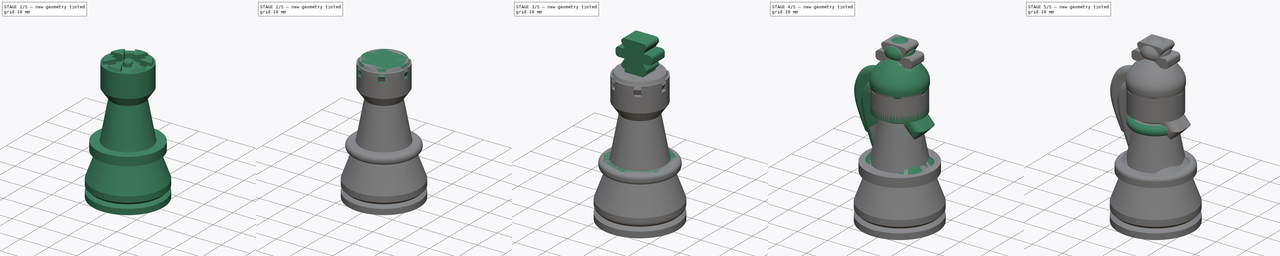
[diagram: build sequence overview — one tinted view per stage of 5, left to right]
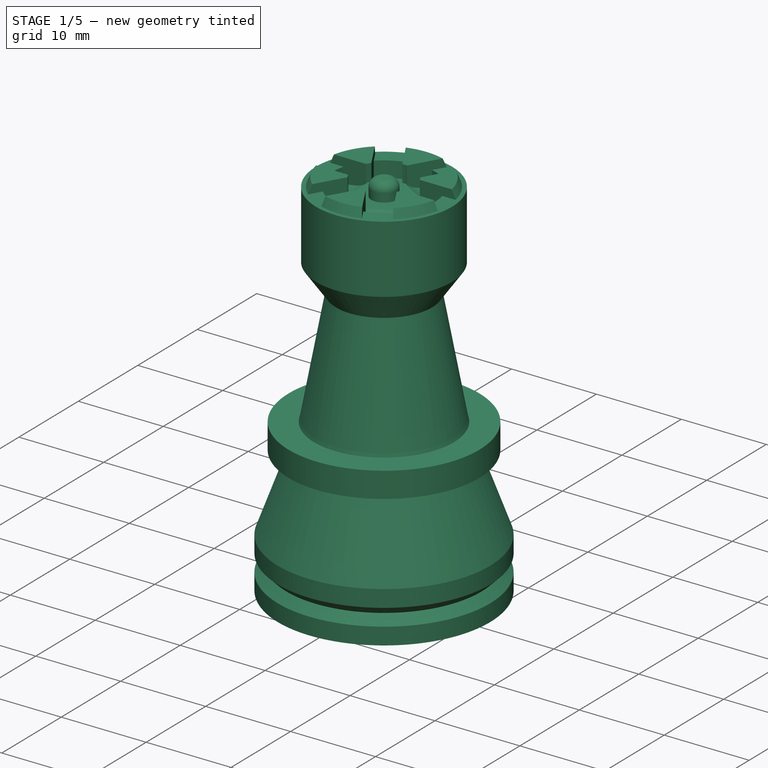
[diagram: stage 1 of 5 — iso view after this stage's code; geometry added in this stage tinted green]
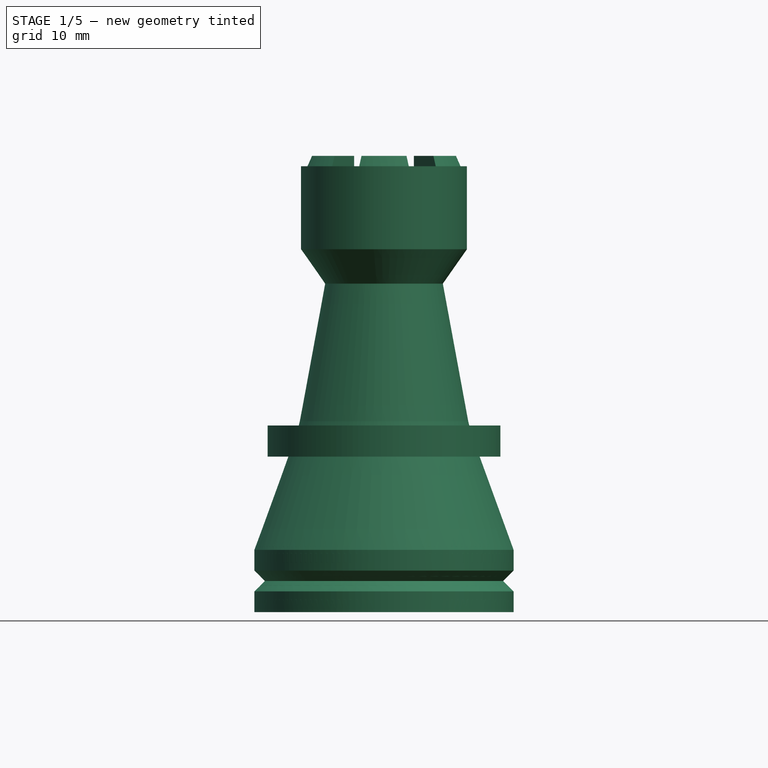
[diagram: stage 1 of 5 — front view after this stage's code; geometry added in this stage tinted green]
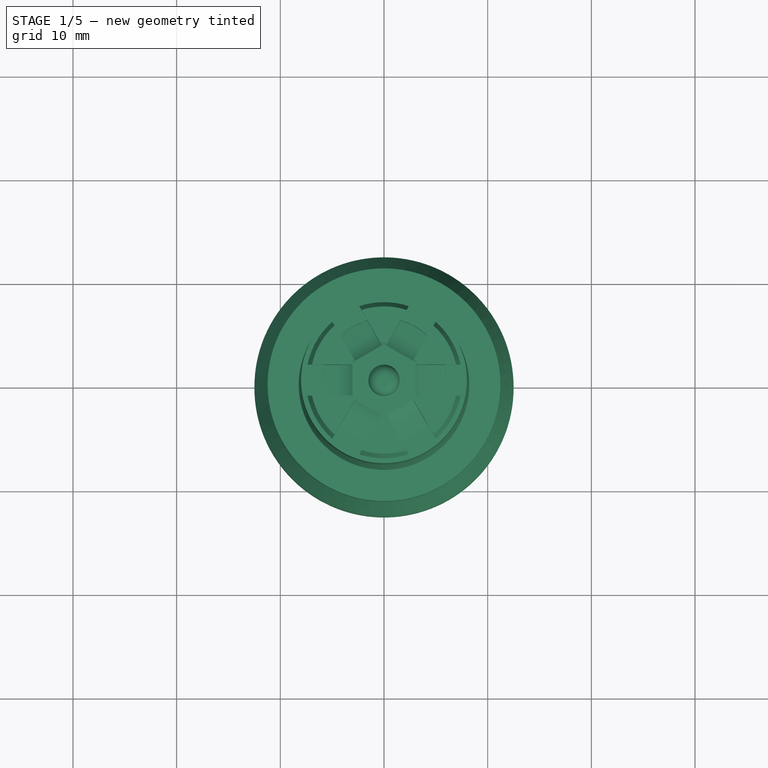
[diagram: stage 1 of 5 — top view after this stage's code; geometry added in this stage tinted green]
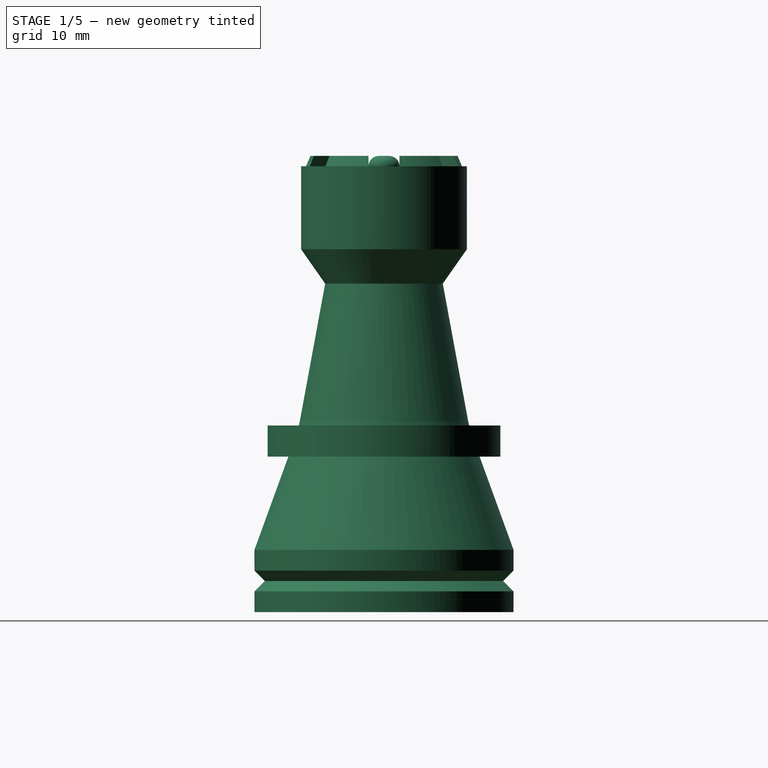
[diagram: stage 1 of 5 — right view after this stage's code; geometry added in this stage tinted green]
FCSTD DOCUMENT  (FreeCAD 1.0R39319 (Git))
Label: ChessPieces
License: All rights reserved
LicenseURL: https://en.wikipedia.org/wiki/All_rights_reserved
objects: PartDesign::Fillet×16, Sketcher::SketchObject×13, PartDesign::Revolution×6, PartDesign::Body×6, PartDesign::Pocket×4, PartDesign::Pad×3, PartDesign::Chamfer×2, PartDesign::PolarPattern×2, PartDesign::Mirrored×1, App::LinkGroup×1
note: 131 computed .brp shape members not serialized (recipe doc carries the construction recipe); baked Part::Feature solids carry a one-line shape summary decoded from their .brp

FEATURE [PartDesign::Body] Body  label="Pawn"
  AllowCompound = false
  Group = -> [Sketch,Revolution,Fillet,Fillet001]
  Origin = -> Origin
  Tip = -> Fillet001
FEATURE [Sketcher::SketchObject] Sketch001
  ArcFitTolerance = 1e-06
  AttachmentSupport = -> [XZ_Plane001]
  FullyConstrained = false
  MakeInternals = false
  MapMode = 5
  Placement = pos=(0,0,0) rot=(1,0,0;1.5708rad)
  sketch-geometry (18):
    g0: LineSegment StartX=0 StartY=5 StartZ=0 EndX=5 EndY=5 EndZ=0
    g1: LineSegment StartX=5 StartY=5 StartZ=0 EndX=5 EndY=0 EndZ=0
    g2: LineSegment StartX=5 StartY=0 StartZ=0 EndX=12.5 EndY=0 EndZ=0
    g3: LineSegment StartX=12.5 StartY=0 StartZ=0 EndX=12.5 EndY=2 EndZ=0
    g4: LineSegment StartX=0 StartY=40 StartZ=0 EndX=0 EndY=5 EndZ=0
    g5: LineSegment StartX=12.5 StartY=2 StartZ=0 EndX=11.5 EndY=3 EndZ=0
    g6: LineSegment StartX=11.5 StartY=3 StartZ=0 EndX=12.5 EndY=4 EndZ=0
    g7: LineSegment StartX=12.5 StartY=4 StartZ=0 EndX=12.5 EndY=6 EndZ=0
    g8: LineSegment StartX=12.5 StartY=6 StartZ=0 EndX=9.22427 EndY=15 EndZ=0
    g9: LineSegment StartX=9.22427 StartY=15 StartZ=0 EndX=11.2243 EndY=15 EndZ=0
    g10: LineSegment StartX=11.2243 StartY=15 StartZ=0 EndX=11.2243 EndY=18 EndZ=0
    g11: LineSegment StartX=11.2243 StartY=18 StartZ=0 EndX=8.19813 EndY=18 EndZ=0
    g12: LineSegment StartX=8.19813 StartY=18 StartZ=0 EndX=5.67552 EndY=31.6803 EndZ=0
    g13: LineSegment StartX=8 StartY=35 StartZ=0 EndX=8 EndY=43 EndZ=0
    g14: LineSegment StartX=8 StartY=43 StartZ=0 EndX=6 EndY=43 EndZ=0
    g15: LineSegment StartX=6 StartY=43 StartZ=0 EndX=6 EndY=40 EndZ=0
    g16: LineSegment StartX=6 StartY=40 StartZ=0 EndX=0 EndY=40 EndZ=0
    g17: LineSegment StartX=8 StartY=35 StartZ=0 EndX=5.67552 EndY=31.6803 EndZ=0
  constraints (52):
    c: PointOnObject(g0,g-2)
    c: Horizontal(g0)
    c: Coincident(g0,g1)
    c: PointOnObject(g1,g-1)
    c: Vertical(g1)
    c: Coincident(g1,g2)
    c: PointOnObject(g2,g-1)
    c: Coincident(g2,g3)
    c: Vertical(g3)
    c: Coincident(g4,g0)
    c: Vertical(g4)
    c: Coincident(g3,g5)
    c: Coincident(g5,g6)
    c: Coincident(g6,g7)
    c: Vertical(g7)
    c: Coincident(g7,g8)
    c: Coincident(g8,g9)
    c: Horizontal(g9)
    c: Coincident(g9,g10)
    c: Vertical(g10)
    c: Distance(g-2,g3) = 12.5
    c: DistanceY(g3,g3) = 2
    c: Angle(g5,g3) = 2.35619
    c: Angle(g5,g6) = 1.5708
    c: Vertical(g6,g3)
    c: DistanceY(g7,g7) = 2
    c: Angle(g8,g7) = 2.79253
    c: DistanceY(g10,g10) = 3
    c: DistanceY(g3,g6) = 2
    c: Coincident(g10,g11)
    c: Horizontal(g11)
    c: Coincident(g11,g12)
    c: Coincident(g13,g14)
    c: Horizontal(g14)
    c: Vertical(g13)
    c: DistanceY(g13,g13) = 8
    c: DistanceY(g-1,g13) = 35
    c: Distance(g-1,g9) = 15
    c: Vertical(g15)
    c: Coincident(g15,g16)
    c: Horizontal(g16)
    c: Coincident(g14,g15)
    c: Coincident(g4,g16)
    c: Distance(g15,g15) = 3
    c: DistanceX(g14,g14) = 2
    c: Distance(g13,g4) = 8
    c: Distance(g-2,g1) = 5
    c: DistanceY(g1,g1) = 5
    c: Coincident(g12,g17)
    c: Angle(g13,g17) = 2.53073
    c: Coincident(g17,g13)
    c: Distance(g9,g9) = 2
FEATURE [PartDesign::Revolution] Revolution001
  Angle = 360
  Angle2 = 60
  Axis = (0,2e-16,1)
  Base = (0,0,0)
  Placement = pos=(0,0,0) rot=(1,0,0;1.5708rad)
  Profile = -> Sketch001
  ReferenceAxis = -> Sketch001 [V_Axis]
  Refine = true
  Reversed = true
  Suppressed = false
  Type = 0
FEATURE [PartDesign::Body] Body004  label="King"
  AllowCompound = false
  Group = -> [Sketch004,Revolution004,Fillet008,Fillet009,Sketch011,Pad002,Fillet014]
  Origin = -> Origin004
  Tip = -> Fillet014
FEATURE [Sketcher::SketchObject] Sketch012
  ArcFitTolerance = 1e-06
  AttachmentSupport = -> [XZ_Plane005]
  FullyConstrained = false
  MakeInternals = false
  MapMode = 5
  Placement = pos=(0,0,0) rot=(1,0,0;1.5708rad)
  sketch-geometry (23):
    g0: LineSegment StartX=0 StartY=4.59574 StartZ=0 EndX=4.72966 EndY=4.59574 EndZ=0
    g1: LineSegment StartX=4.72966 StartY=4.59574 StartZ=0 EndX=4.72966 EndY=0 EndZ=0
    g2: LineSegment StartX=4.72966 StartY=0 StartZ=0 EndX=12.5 EndY=0 EndZ=0
    g3: LineSegment StartX=12.5 StartY=0 StartZ=0 EndX=12.5 EndY=2 EndZ=0
    g4: LineSegment StartX=0 StartY=44 StartZ=0 EndX=0 EndY=4.59574 EndZ=0
    g5: LineSegment StartX=12.5 StartY=2 StartZ=0 EndX=11.5 EndY=3 EndZ=0
    g6: LineSegment StartX=11.5 StartY=3 StartZ=0 EndX=12.5 EndY=4 EndZ=0
    g7: LineSegment StartX=12.5 StartY=4 StartZ=0 EndX=12.5 EndY=6 EndZ=0
    g8: LineSegment StartX=12.5 StartY=6 StartZ=0 EndX=9.22427 EndY=15 EndZ=0
    g9: LineSegment StartX=9.22427 StartY=15 StartZ=0 EndX=11.2243 EndY=15 EndZ=0
    g10: LineSegment StartX=11.2243 StartY=15 StartZ=0 EndX=11.2243 EndY=18 EndZ=0
    g11: LineSegment StartX=11.2243 StartY=18 StartZ=0 EndX=8.22427 EndY=18 EndZ=0
    g12: LineSegment StartX=8.22427 StartY=18 StartZ=0 EndX=4 EndY=35 EndZ=0
    g13: LineSegment StartX=4 StartY=35 StartZ=0 EndX=8 EndY=35 EndZ=0
    g14: LineSegment StartX=8 StartY=35 StartZ=0 EndX=8 EndY=38 EndZ=0
    g15: LineSegment StartX=8 StartY=38 StartZ=0 EndX=5.73648 EndY=38 EndZ=0
    g16: LineSegment StartX=5.73648 StartY=38 StartZ=0 EndX=7.96329 EndY=42 EndZ=0
    g17: LineSegment StartX=7.96329 StartY=42 StartZ=0 EndX=7.10193 EndY=44 EndZ=0
    g18: LineSegment StartX=0 StartY=44 StartZ=0 EndX=1.5 EndY=44 EndZ=0
    g19: LineSegment StartX=1.5 StartY=44 StartZ=0 EndX=1.5 EndY=42 EndZ=0
    g20: LineSegment StartX=1.5 StartY=42 StartZ=0 EndX=3.5 EndY=42 EndZ=0
    g21: LineSegment StartX=3.5 StartY=42 StartZ=0 EndX=3.5 EndY=44 EndZ=0
    g22: LineSegment StartX=3.5 StartY=44 StartZ=0 EndX=7.10193 EndY=44 EndZ=0
  constraints (64):
    c: PointOnObject(g0,g-2)
    c: Horizontal(g0)
    c: Coincident(g0,g1)
    c: PointOnObject(g1,g-1)
    c: Vertical(g1)
    c: Coincident(g1,g2)
    c: PointOnObject(g2,g-1)
    c: Coincident(g2,g3)
    c: Vertical(g3)
    c: Coincident(g4,g0)
    c: Vertical(g4)
    c: Coincident(g3,g5)
    c: Coincident(g5,g6)
    c: Coincident(g6,g7)
    c: Vertical(g7)
    c: Coincident(g7,g8)
    c: Coincident(g8,g9)
    c: Horizontal(g9)
    c: Coincident(g9,g10)
    c: Vertical(g10)
    c: Distance(g-2,g3) = 12.5
    c: DistanceY(g3,g3) = 2
    c: Angle(g5,g3) = 2.35619
    c: Angle(g5,g6) = 1.5708
    c: Vertical(g6,g3)
    c: DistanceY(g7,g7) = 2
    c: Angle(g8,g7) = 2.79253
    c: DistanceY(g10,g10) = 3
    c: DistanceY(g3,g6) = 2
    c: Coincident(g10,g11)
    c: Horizontal(g11)
    c: Coincident(g11,g12)
    c: Coincident(g12,g13)
    c: Coincident(g13,g14)
    c: Horizontal(g13)
    c: Vertical(g14)
    c: DistanceY(g14,g14) = 3
    c: Distance(g4,g14) = 8
    c: DistanceY(g-1,g13) = 35
    c: Distance(g-1,g9) = 15
    c: DistanceX(g-1,g12) = 4
    c: Coincident(g14,g15)
    c: Horizontal(g15)
    c: Coincident(g15,g16)
    c: Coincident(g16,g17)
    c: DistanceY(g16,g17) = 2
    c: Coincident(g4,g18)
    c: Horizontal(g18)
    c: Coincident(g18,g19)
    c: Vertical(g19)
    c: Coincident(g19,g20)
    c: Horizontal(g20)
    c: Coincident(g20,g21)
    c: Vertical(g21)
    c: Coincident(g21,g22)
    c: Coincident(g22,g17)
    c: Horizontal(g22)
    c: Horizontal(g21,g18)
    c: Distance(g-1,g18) = 44
    c: Distance(g18,g18) = 1.5
    c: DistanceX(g20,g20) = 2
    c: DistanceX(g9,g9) = 2
    c: Distance(g11,g11) = 3
    c: DistanceY(g19,g19) = 2
FEATURE [PartDesign::Revolution] Revolution005
  Angle = 360
  Angle2 = 60
  Axis = (0,2e-16,1)
  Base = (0,0,0)
  Placement = pos=(0,0,0) rot=(1,0,0;1.5708rad)
  Profile = -> Sketch012
  ReferenceAxis = -> Sketch012 [V_Axis]
  Refine = true
  Reversed = true
  Suppressed = false
  Type = 0
FEATURE [PartDesign::Fillet] Fillet015
  Base = -> Revolution005 [Edge16,Edge15,Edge22,Edge21]
  BaseFeature = -> Revolution005
  Placement = pos=(0,0,0) rot=(1,0,0;1.5708rad)
  Radius = 1.45
  Refine = true
  SupportTransform = false
  Suppressed = false
  UseAllEdges = false
FEATURE [PartDesign::Fillet] Fillet016
  Base = -> Fillet015 [Edge5,Edge9,Edge16]
  BaseFeature = -> Fillet015
  Placement = pos=(0,0,0) rot=(1,0,0;1.5708rad)
  Radius = 2
  Refine = true
  SupportTransform = false
  Suppressed = false
  UseAllEdges = false
FEATURE [Sketcher::SketchObject] Sketch013
  ArcFitTolerance = 1e-06
  AttachmentSupport = -> [XZ_Plane005]
  ExternalGeometry = -> [Fillet016]
  FullyConstrained = false
  MakeInternals = false
  MapMode = 5
  Placement = pos=(0,0,0) rot=(1,0,0;1.5708rad)
  sketch-geometry (4):
    g0: ArcOfCircle CenterX=-4.91446 CenterY=44.3362 CenterZ=0 NormalX=0 NormalY=0 NormalZ=1 AngleXU=0 Radius=3 StartAngle=4.8649 EndAngle=8.00649
    g1: ArcOfCircle CenterX=-7.10193 CenterY=44 CenterZ=0 NormalX=0 NormalY=0 NormalZ=1 AngleXU=0 Radius=3 StartAngle=1.72331 EndAngle=4.8649
    g2: LineSegment StartX=-4.45869 StartY=41.371 StartZ=0 EndX=-6.64617 EndY=41.0348 EndZ=0
    g3: LineSegment StartX=-5.37022 StartY=47.3014 StartZ=0 EndX=-7.55769 EndY=46.9652 EndZ=0
  constraints (7):
    c: Tangent(g0,g2) = 1.5708
    c: Tangent(g0,g3) = -1.5708
    c: Tangent(g1,g2) = 1.5708
    c: Tangent(g1,g3) = -1.5708
    c: Equal(g0,g1)
    c: Radius(g1) = 3
    c: Coincident(g1,g-3)
FEATURE [PartDesign::Pocket] Pocket003
  BaseFeature = -> Fillet016
  Direction = (0,1,-2e-16)
  Length = 3
  Length2 = 5
  Midplane = true
  Placement = pos=(0,0,0) rot=(1,0,0;1.5708rad)
  Profile = -> Sketch013
  ReferenceAxis = -> Sketch013 [N_Axis]
  Refine = true
  Suppressed = false
  Type = 0
FEATURE [PartDesign::PolarPattern] PolarPattern001
  Angle = 360
  Axis = -> Sketch013 [V_Axis]
  BaseFeature = -> Pocket003
  Mode = 0
  Occurrences = 6
  Offset = 120
  Originals = -> [Pocket003]
  Placement = pos=(0,0,0) rot=(1,0,0;1.5708rad)
  Refine = true
  Suppressed = false
  TransformMode = 0
FEATURE [PartDesign::Body] Body001  label="Rook"
  AllowCompound = false
  Group = -> [Sketch001,Revolution001,Fillet002,Fillet003,Sketch006,Pocket,PolarPattern,Fillet017]
  Origin = -> Origin001
  Tip = -> Fillet017
FEATURE [PartDesign::Fillet] Fillet018
  Base = -> PolarPattern001 [Edge186]
  BaseFeature = -> PolarPattern001
  Placement = pos=(0,0,0) rot=(1,0,0;1.5708rad)
  Radius = 1
  Refine = true
  SupportTransform = false
  Suppressed = false
  UseAllEdges = false
FEATURE [PartDesign::Body] Body005  label="Queen"
  AllowCompound = false
  Group = -> [Sketch012,Revolution005,Fillet015,Fillet016,Sketch013,Pocket003,PolarPattern001,Fillet018]
  Origin = -> Origin005
  Tip = -> Fillet018
FEATURE [App::LinkGroup] LinkGroup  label="ChessPieces"
  ElementList = -> [Body,Body001,Body002,Body003,Body004,Body005]
  LinkMode = 0
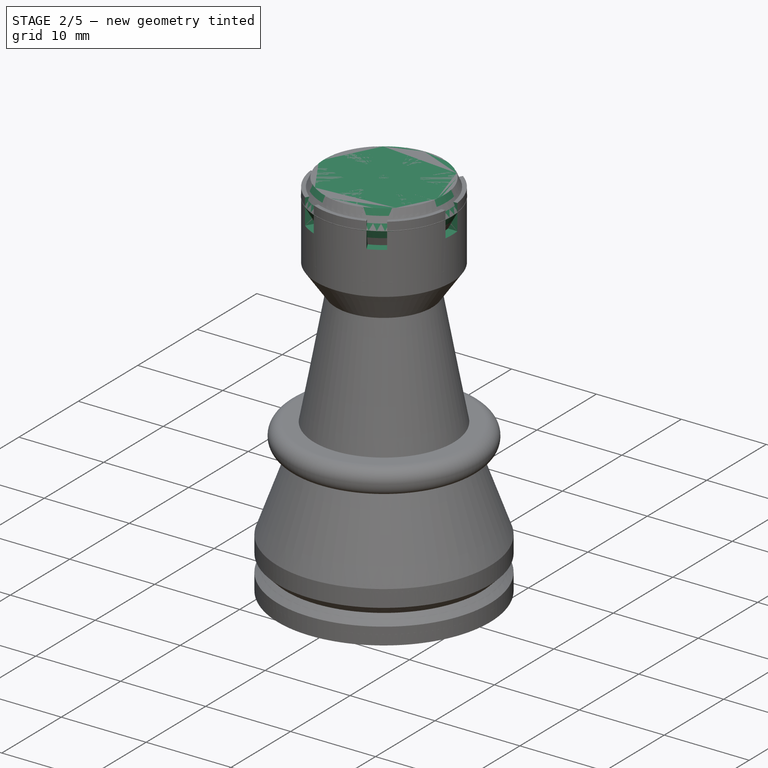
[diagram: stage 2 of 5 — iso view after this stage's code; geometry added in this stage tinted green]
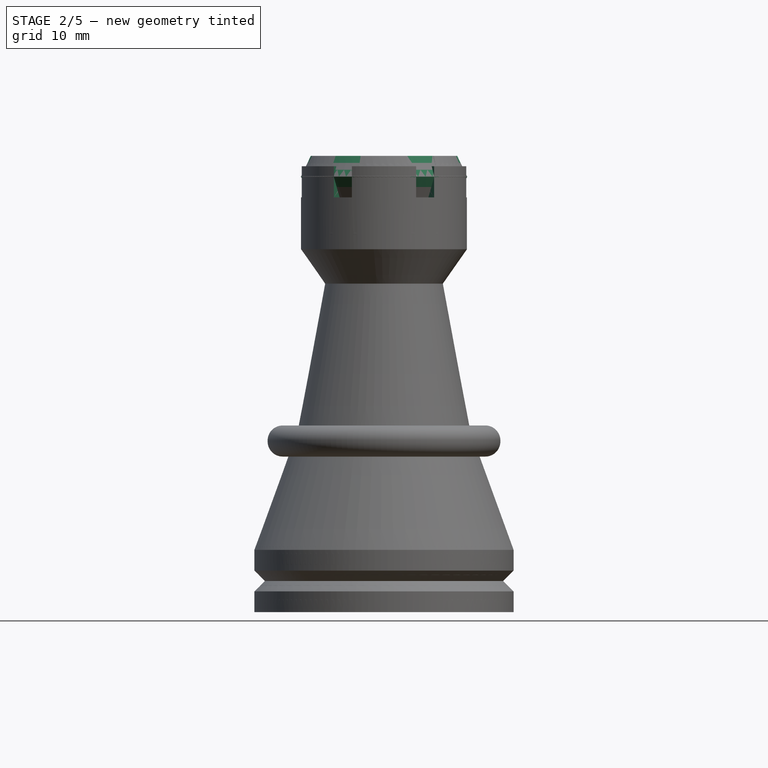
[diagram: stage 2 of 5 — front view after this stage's code; geometry added in this stage tinted green]
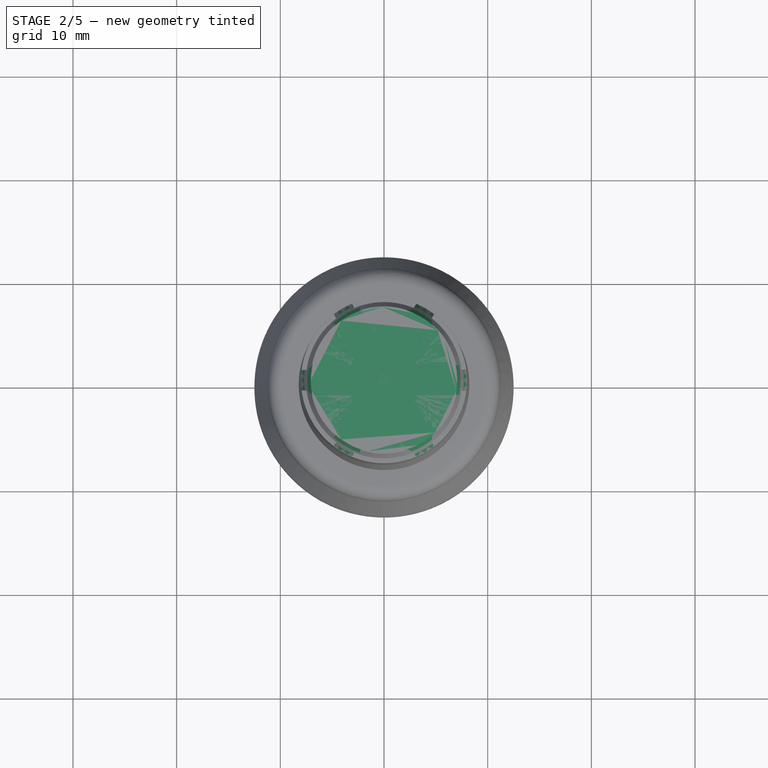
[diagram: stage 2 of 5 — top view after this stage's code; geometry added in this stage tinted green]
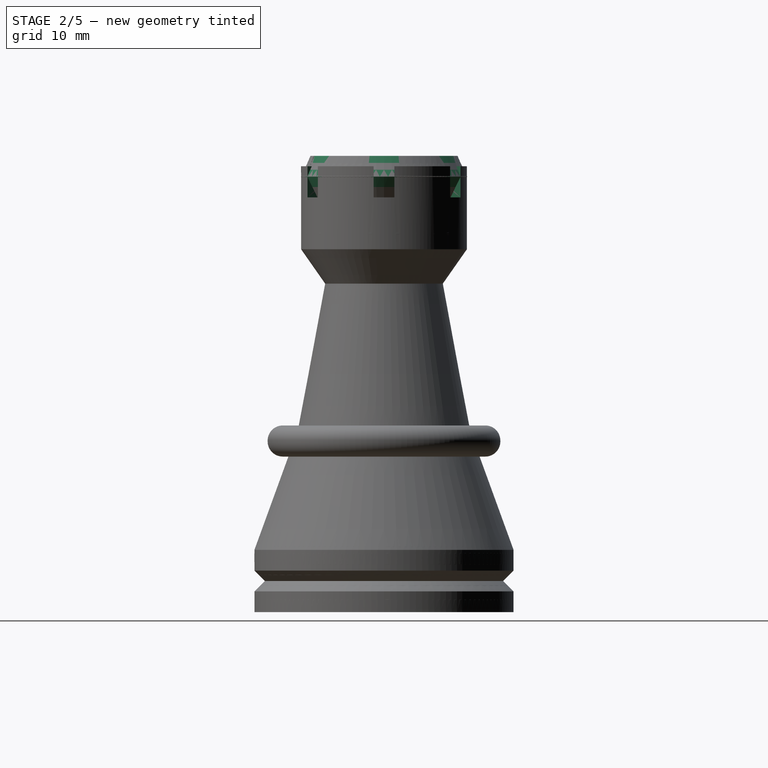
[diagram: stage 2 of 5 — right view after this stage's code; geometry added in this stage tinted green]
FEATURE [PartDesign::Fillet] Fillet002
  Base = -> Revolution001 [Edge16,Edge15]
  BaseFeature = -> Revolution001
  Placement = pos=(0,0,0) rot=(1,0,0;1.5708rad)
  Radius = 1.49
  Refine = true
  SupportTransform = false
  Suppressed = false
  UseAllEdges = false
FEATURE [PartDesign::Fillet] Fillet003
  Base = -> Fillet002 [Edge28]
  BaseFeature = -> Fillet002
  Placement = pos=(0,0,0) rot=(1,0,0;1.5708rad)
  Radius = 2
  Refine = true
  SupportTransform = false
  Suppressed = false
  UseAllEdges = false
FEATURE [Sketcher::SketchObject] Sketch004
  ArcFitTolerance = 1e-06
  AttachmentSupport = -> [XZ_Plane004]
  FullyConstrained = false
  MakeInternals = false
  MapMode = 5
  Placement = pos=(0,0,0) rot=(1,0,0;1.5708rad)
  sketch-geometry (19):
    g0: LineSegment StartX=0 StartY=4.59574 StartZ=0 EndX=4.72966 EndY=4.59574 EndZ=0
    g1: LineSegment StartX=4.72966 StartY=4.59574 StartZ=0 EndX=4.72966 EndY=0 EndZ=0
    g2: LineSegment StartX=4.72966 StartY=0 StartZ=0 EndX=12.5 EndY=0 EndZ=0
    g3: LineSegment StartX=12.5 StartY=0 StartZ=0 EndX=12.5 EndY=2 EndZ=0
    g4: LineSegment StartX=0 StartY=44 StartZ=0 EndX=0 EndY=4.59574 EndZ=0
    g5: LineSegment StartX=12.5 StartY=2 StartZ=0 EndX=11.5 EndY=3 EndZ=0
    g6: LineSegment StartX=11.5 StartY=3 StartZ=0 EndX=12.5 EndY=4 EndZ=0
    g7: LineSegment StartX=12.5 StartY=4 StartZ=0 EndX=12.5 EndY=6 EndZ=0
    g8: LineSegment StartX=12.5 StartY=6 StartZ=0 EndX=9.22427 EndY=15 EndZ=0
    g9: LineSegment StartX=9.22427 StartY=15 StartZ=0 EndX=11.2243 EndY=15 EndZ=0
    g10: LineSegment StartX=11.2243 StartY=15 StartZ=0 EndX=11.2243 EndY=18 EndZ=0
    g11: LineSegment StartX=11.2243 StartY=18 StartZ=0 EndX=8.22427 EndY=18 EndZ=0
    g12: LineSegment StartX=8.22427 StartY=18 StartZ=0 EndX=5 EndY=35 EndZ=0
    g13: LineSegment StartX=5 StartY=35 StartZ=0 EndX=8 EndY=35 EndZ=0
    g14: LineSegment StartX=8 StartY=35 StartZ=0 EndX=8 EndY=38 EndZ=0
    g15: LineSegment StartX=8 StartY=38 StartZ=0 EndX=5.80074 EndY=38 EndZ=0
    g16: LineSegment StartX=5.80074 StartY=38 StartZ=0 EndX=8.02086 EndY=42 EndZ=0
    g17: LineSegment StartX=8.02086 StartY=42 StartZ=0 EndX=7.06401 EndY=44 EndZ=0
    g18: LineSegment StartX=7.06401 StartY=44 StartZ=0 EndX=0 EndY=44 EndZ=0
  constraints (52):
    c: PointOnObject(g0,g-2)
    c: Horizontal(g0)
    c: Coincident(g0,g1)
    c: PointOnObject(g1,g-1)
    c: Vertical(g1)
    c: Coincident(g1,g2)
    c: PointOnObject(g2,g-1)
    c: Coincident(g2,g3)
    c: Vertical(g3)
    c: Coincident(g4,g0)
    c: Vertical(g4)
    c: Coincident(g3,g5)
    c: Coincident(g5,g6)
    c: Coincident(g6,g7)
    c: Vertical(g7)
    c: Coincident(g7,g8)
    c: Coincident(g8,g9)
    c: Horizontal(g9)
    c: Coincident(g9,g10)
    c: Vertical(g10)
    c: Distance(g-2,g3) = 12.5
    c: DistanceY(g3,g3) = 2
    c: Angle(g5,g3) = 2.35619
    c: Angle(g5,g6) = 1.5708
    c: Vertical(g6,g3)
    c: DistanceY(g7,g7) = 2
    c: Angle(g8,g7) = 2.79253
    c: DistanceY(g10,g10) = 3
    c: DistanceY(g3,g6) = 2
    c: Coincident(g10,g11)
    c: Horizontal(g11)
    c: Coincident(g11,g12)
    c: Coincident(g12,g13)
    c: Coincident(g13,g14)
    c: Horizontal(g13)
    c: Vertical(g14)
    c: DistanceY(g14,g14) = 3
    c: Distance(g4,g14) = 8
    c: DistanceY(g-1,g13) = 35
    c: Distance(g-1,g9) = 15
    c: DistanceX(g-1,g12) = 5
    c: Coincident(g14,g15)
    c: Horizontal(g15)
    c: Coincident(g15,g16)
    c: Coincident(g16,g17)
    c: Coincident(g17,g18)
    c: Horizontal(g18)
    c: Coincident(g4,g18)
    c: DistanceY(g16,g17) = 2
    c: Distance(g-1,g18) = 44
    c: Distance(g9,g9) = 2
    c: DistanceX(g11,g11) = 3
FEATURE [PartDesign::Revolution] Revolution004
  Angle = 360
  Angle2 = 60
  Axis = (0,2e-16,1)
  Base = (0,0,0)
  Placement = pos=(0,0,0) rot=(1,0,0;1.5708rad)
  Profile = -> Sketch004
  ReferenceAxis = -> Sketch004 [V_Axis]
  Refine = true
  Reversed = true
  Suppressed = false
  Type = 0
FEATURE [PartDesign::Fillet] Fillet008
  Base = -> Revolution004 [Edge16,Edge15,Edge22,Edge21]
  BaseFeature = -> Revolution004
  Placement = pos=(0,0,0) rot=(1,0,0;1.5708rad)
  Radius = 1.45
  Refine = true
  SupportTransform = false
  Suppressed = false
  UseAllEdges = false
FEATURE [Sketcher::SketchObject] Sketch006
  ArcFitTolerance = 1e-06
  FullyConstrained = false
  MakeInternals = false
  MapMode = 5
  Placement = pos=(0,9.4e-15,43) rot=(0,0,1;3.14159rad)
  sketch-geometry (4):
    g0: LineSegment StartX=5.57791 StartY=1 StartZ=0 EndX=5.57791 EndY=-1 EndZ=0
    g1: LineSegment StartX=5.57791 StartY=-1 StartZ=0 EndX=13.1168 EndY=-1 EndZ=0
    g2: LineSegment StartX=13.1168 StartY=-1 StartZ=0 EndX=13.1168 EndY=1 EndZ=0
    g3: LineSegment StartX=13.1168 StartY=1 StartZ=0 EndX=5.57791 EndY=1 EndZ=0
  constraints (10):
    c: Coincident(g0,g1)
    c: Coincident(g1,g2)
    c: Coincident(g2,g3)
    c: Coincident(g3,g0)
    c: Vertical(g0)
    c: Vertical(g2)
    c: Horizontal(g1)
    c: Horizontal(g3)
    c: Distance(g-1,g3) = 1
    c: Distance(g-1,g1) = 1
FEATURE [PartDesign::Pocket] Pocket
  BaseFeature = -> Fillet003
  Direction = (0,0,-1)
  Length = 3
  Length2 = 5
  Placement = pos=(0,0,0) rot=(1,0,0;1.5708rad)
  Profile = -> Sketch006
  ReferenceAxis = -> Sketch006 [N_Axis]
  Refine = true
  Suppressed = false
  Type = 0
FEATURE [PartDesign::PolarPattern] PolarPattern
  Angle = 360
  Axis = -> Sketch006 [N_Axis]
  BaseFeature = -> Pocket
  Mode = 0
  Occurrences = 6
  Offset = 120
  Originals = -> [Pocket]
  Placement = pos=(0,0,0) rot=(1,0,0;1.5708rad)
  Refine = true
  Suppressed = false
  TransformMode = 0
FEATURE [PartDesign::Fillet] Fillet017
  Base = -> PolarPattern [Edge119,Edge120]
  BaseFeature = -> PolarPattern
  Placement = pos=(0,0,0) rot=(1,0,0;1.5708rad)
  Radius = 1.49
  Refine = true
  SupportTransform = false
  Suppressed = false
  UseAllEdges = false
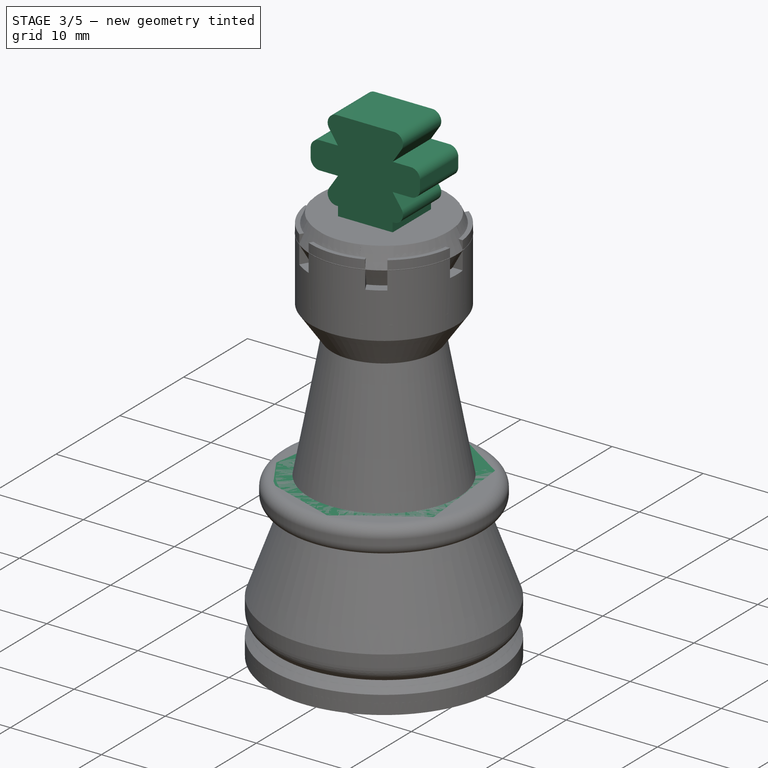
[diagram: stage 3 of 5 — iso view after this stage's code; geometry added in this stage tinted green]
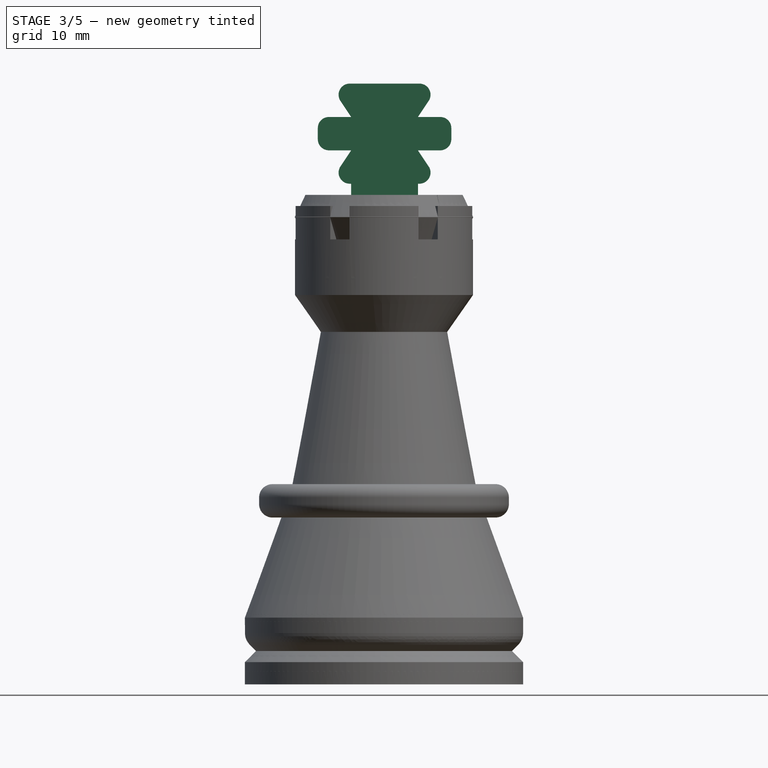
[diagram: stage 3 of 5 — front view after this stage's code; geometry added in this stage tinted green]
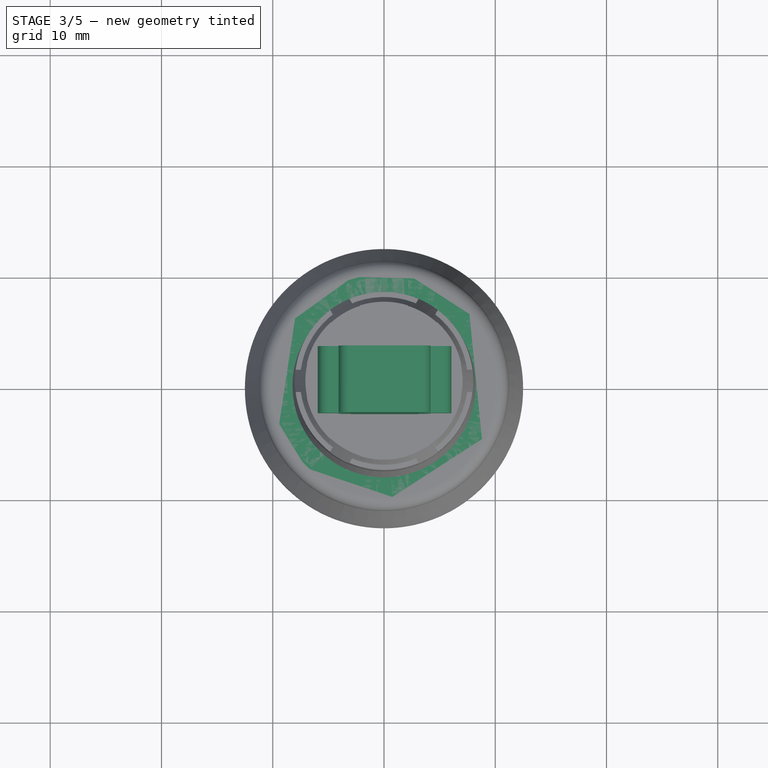
[diagram: stage 3 of 5 — top view after this stage's code; geometry added in this stage tinted green]
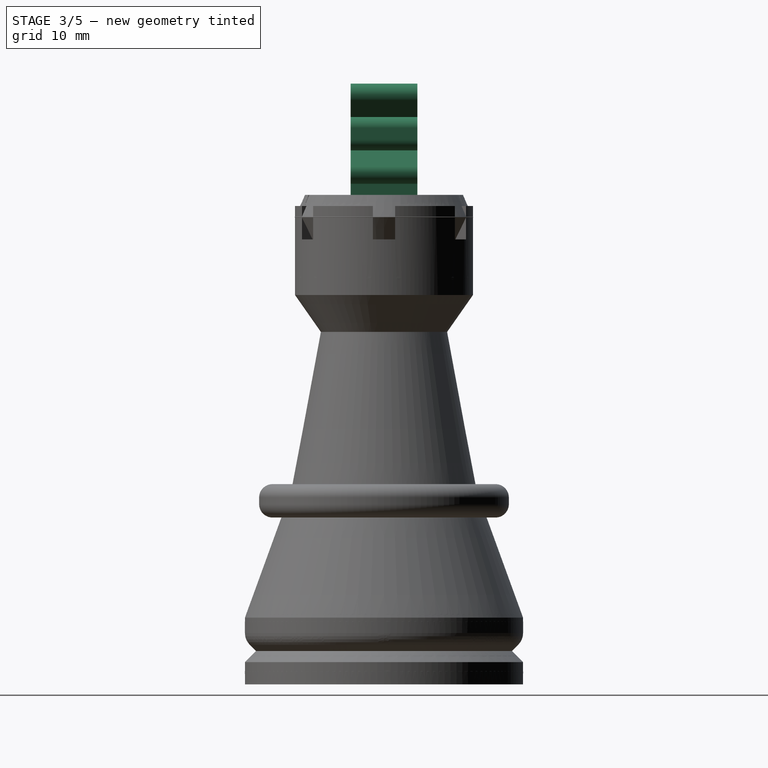
[diagram: stage 3 of 5 — right view after this stage's code; geometry added in this stage tinted green]
FEATURE [Sketcher::SketchObject] Sketch003
  ArcFitTolerance = 1e-06
  AttachmentSupport = -> [XZ_Plane003]
  FullyConstrained = true
  MakeInternals = false
  MapMode = 5
  Placement = pos=(0,0,0) rot=(1,0,0;1.5708rad)
  sketch-geometry (12):
    g0: LineSegment StartX=0 StartY=5 StartZ=0 EndX=5 EndY=5 EndZ=0
    g1: LineSegment StartX=5 StartY=5 StartZ=0 EndX=5 EndY=0 EndZ=0
    g2: LineSegment StartX=5 StartY=0 StartZ=0 EndX=12.5 EndY=0 EndZ=0
    g3: LineSegment StartX=12.5 StartY=0 StartZ=0 EndX=12.5 EndY=2 EndZ=0
    g4: LineSegment StartX=0 StartY=18 StartZ=0 EndX=0 EndY=5 EndZ=0
    g5: LineSegment StartX=12.5 StartY=2 StartZ=0 EndX=11.5 EndY=3 EndZ=0
    g6: LineSegment StartX=11.5 StartY=3 StartZ=0 EndX=12.5 EndY=4 EndZ=0
    g7: LineSegment StartX=12.5 StartY=4 StartZ=0 EndX=12.5 EndY=6 EndZ=0
    g8: LineSegment StartX=12.5 StartY=6 StartZ=0 EndX=9.22427 EndY=15 EndZ=0
    g9: LineSegment StartX=9.22427 StartY=15 StartZ=0 EndX=11.2243 EndY=15 EndZ=0
    g10: LineSegment StartX=11.2243 StartY=15 StartZ=0 EndX=11.2243 EndY=18 EndZ=0
    g11: LineSegment StartX=11.2243 StartY=18 StartZ=0 EndX=0 EndY=18 EndZ=0
  constraints (36):
    c: PointOnObject(g0,g-2)
    c: Horizontal(g0)
    c: Coincident(g0,g1)
    c: PointOnObject(g1,g-1)
    c: Vertical(g1)
    c: Coincident(g1,g2)
    c: PointOnObject(g2,g-1)
    c: Coincident(g2,g3)
    c: Vertical(g3)
    c: Coincident(g4,g0)
    c: Vertical(g4)
    c: Coincident(g3,g5)
    c: Coincident(g5,g6)
    c: Coincident(g6,g7)
    c: Vertical(g7)
    c: Coincident(g7,g8)
    c: Coincident(g8,g9)
    c: Horizontal(g9)
    c: Coincident(g9,g10)
    c: Vertical(g10)
    c: Distance(g-2,g3) = 12.5
    c: DistanceY(g3,g3) = 2
    c: Angle(g5,g3) = 2.35619
    c: Angle(g5,g6) = 1.5708
    c: Vertical(g6,g3)
    c: DistanceY(g7,g7) = 2
    c: Angle(g8,g7) = 2.79253
    c: DistanceY(g10,g10) = 3
    c: DistanceY(g3,g6) = 2
    c: Coincident(g10,g11)
    c: Horizontal(g11)
    c: Distance(g-1,g9) = 15
    c: DistanceY(g1,g1) = 5
    c: Distance(g4,g1) = 5
    c: Coincident(g4,g11)
    c: DistanceX(g9,g9) = 2
FEATURE [PartDesign::Revolution] Revolution003
  Angle = 360
  Angle2 = 60
  Axis = (0,2e-16,1)
  Base = (0,0,0)
  Placement = pos=(0,0,0) rot=(1,0,0;1.5708rad)
  Profile = -> Sketch003
  ReferenceAxis = -> Sketch003 [V_Axis]
  Refine = true
  Reversed = true
  Suppressed = false
  Type = 0
FEATURE [PartDesign::Fillet] Fillet006
  Base = -> Revolution003 [Edge16,Edge15]
  BaseFeature = -> Revolution003
  Placement = pos=(0,0,0) rot=(1,0,0;1.5708rad)
  Radius = 1.2
  Refine = true
  SupportTransform = false
  Suppressed = false
  UseAllEdges = false
FEATURE [PartDesign::Fillet] Fillet007
  Base = -> Fillet006 [Edge5,Edge9,Edge15]
  BaseFeature = -> Fillet006
  Placement = pos=(0,0,0) rot=(1,0,0;1.5708rad)
  Radius = 2
  Refine = true
  SupportTransform = false
  Suppressed = false
  UseAllEdges = false
FEATURE [PartDesign::Fillet] Fillet009
  Base = -> Fillet008 [Edge5,Edge9,Edge16]
  BaseFeature = -> Fillet008
  Placement = pos=(0,0,0) rot=(1,0,0;1.5708rad)
  Radius = 2
  Refine = true
  SupportTransform = false
  Suppressed = false
  UseAllEdges = false
FEATURE [PartDesign::Body] Body003  label="Knight"
  AllowCompound = false
  Group = -> [Sketch003,Revolution003,Fillet006,Fillet007,Sketch008,Pad,Sketch009,Pad001,Fillet013,Sketch010,Pocket002,Mirrored,Chamfer005]
  Origin = -> Origin003
  Tip = -> Chamfer005
FEATURE [Sketcher::SketchObject] Sketch011
  ArcFitTolerance = 1e-06
  AttachmentSupport = -> [XZ_Plane004]
  ExternalGeometry = -> [Fillet009]
  FullyConstrained = false
  MakeInternals = false
  MapMode = 5
  Placement = pos=(0,0,0) rot=(1,0,0;1.5708rad)
  sketch-geometry (16):
    g0: LineSegment StartX=-4.94924 StartY=45 StartZ=0 EndX=-2.94924 EndY=45 EndZ=0
    g1: LineSegment StartX=5.05076 StartY=45 StartZ=0 EndX=3.05076 EndY=48 EndZ=0
    g2: LineSegment StartX=3.05076 StartY=48 StartZ=0 EndX=6.05076 EndY=48 EndZ=0
    g3: LineSegment StartX=6.05076 StartY=48 StartZ=0 EndX=6.05076 EndY=51 EndZ=0
    g4: LineSegment StartX=6.05076 StartY=51 StartZ=0 EndX=3.05076 EndY=51 EndZ=0
    g5: LineSegment StartX=3.05076 StartY=51 StartZ=0 EndX=5.05076 EndY=54 EndZ=0
    g6: LineSegment StartX=5.05076 StartY=54 StartZ=0 EndX=-4.94924 EndY=54 EndZ=0
    g7: LineSegment StartX=-4.94924 StartY=54 StartZ=0 EndX=-2.94924 EndY=51 EndZ=0
    g8: LineSegment StartX=-2.94924 StartY=51 StartZ=0 EndX=-5.94924 EndY=51 EndZ=0
    g9: LineSegment StartX=-5.94924 StartY=51 StartZ=0 EndX=-5.94924 EndY=48 EndZ=0
    g10: LineSegment StartX=-5.94924 StartY=48 StartZ=0 EndX=-2.94924 EndY=48 EndZ=0
    g11: LineSegment StartX=-2.94924 StartY=48 StartZ=0 EndX=-4.94924 EndY=45 EndZ=0
    g12: LineSegment StartX=-2.94924 StartY=45 StartZ=0 EndX=-2.94924 EndY=44 EndZ=0
    g13: LineSegment StartX=-2.94924 StartY=44 StartZ=0 EndX=3.05076 EndY=44 EndZ=0
    g14: LineSegment StartX=3.05076 StartY=44 StartZ=0 EndX=3.05076 EndY=45 EndZ=0
    g15: LineSegment StartX=3.05076 StartY=45 StartZ=0 EndX=5.05076 EndY=45 EndZ=0
  constraints (38):
    c: Coincident(g15,g1)
    c: Coincident(g1,g2)
    c: Coincident(g2,g3)
    c: Vertical(g3)
    c: Coincident(g3,g4)
    c: Coincident(g4,g5)
    c: Coincident(g5,g6)
    c: Horizontal(g6)
    c: Coincident(g6,g7)
    c: Coincident(g7,g8)
    c: Horizontal(g8)
    c: Coincident(g8,g9)
    c: Coincident(g9,g10)
    c: Horizontal(g10)
    c: Coincident(g10,g11)
    c: Coincident(g11,g0)
    c: Horizontal(g2)
    c: Horizontal(g4)
    c: Vertical(g9)
    c: Horizontal(g1,g10)
    c: Distance(g2,g2) = 3
    c: DistanceY(g3,g3) = 3
    c: DistanceX(g10,g10) = 3
    c: Horizontal(g7,g4)
    c: Distance(g4,g6) = 3
    c: Horizontal(g0)
    c: Distance(g1,g0) = 3
    c: Vertical(g12)
    c: Coincident(g12,g13)
    c: Coincident(g13,g14)
    c: PointOnObject(g14,g15)
    c: Vertical(g14)
    c: Coincident(g0,g12)
    c: PointOnObject(g15,g14)
    c: Horizontal(g14,g0)
    c: Horizontal(g15)
    c: Vertical(g10,g7)
    c: Vertical(g1,g4)
FEATURE [PartDesign::Pad] Pad002
  BaseFeature = -> Fillet009
  Direction = (0,-1,2e-16)
  Length = 6
  Length2 = 10
  Midplane = true
  Placement = pos=(0,0,0) rot=(1,0,0;1.5708rad)
  Profile = -> Sketch011
  ReferenceAxis = -> Sketch011 [N_Axis]
  Refine = true
  Suppressed = false
  Type = 0
FEATURE [PartDesign::Fillet] Fillet014
  Base = -> Pad002 [Edge79,Edge89,Edge88,Edge86,Edge85,Edge83,Edge82,Edge80]
  BaseFeature = -> Pad002
  Placement = pos=(0,0,0) rot=(1,0,0;1.5708rad)
  Radius = 1
  Refine = true
  SupportTransform = false
  Suppressed = false
  UseAllEdges = false
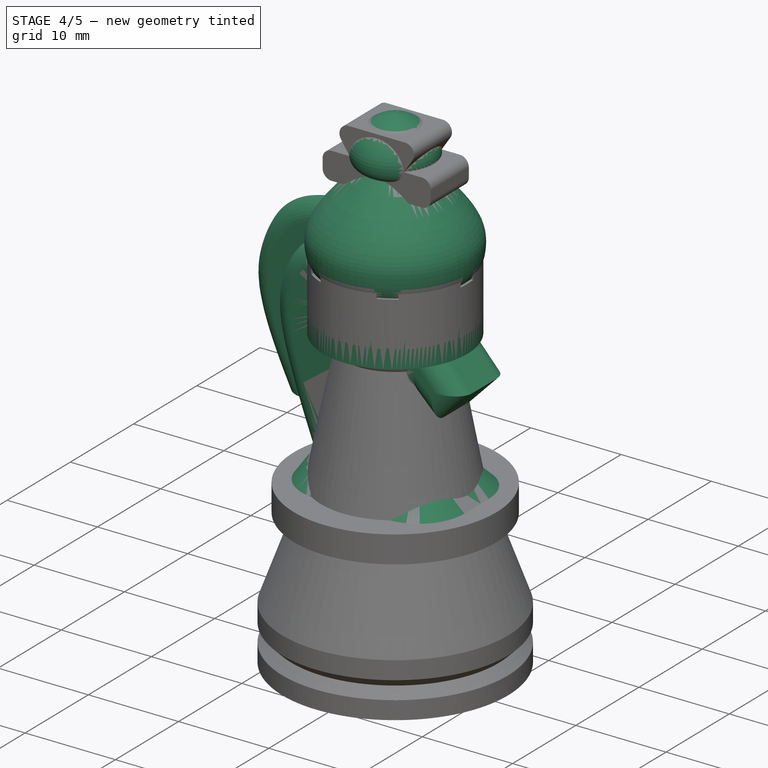
[diagram: stage 4 of 5 — iso view after this stage's code; geometry added in this stage tinted green]
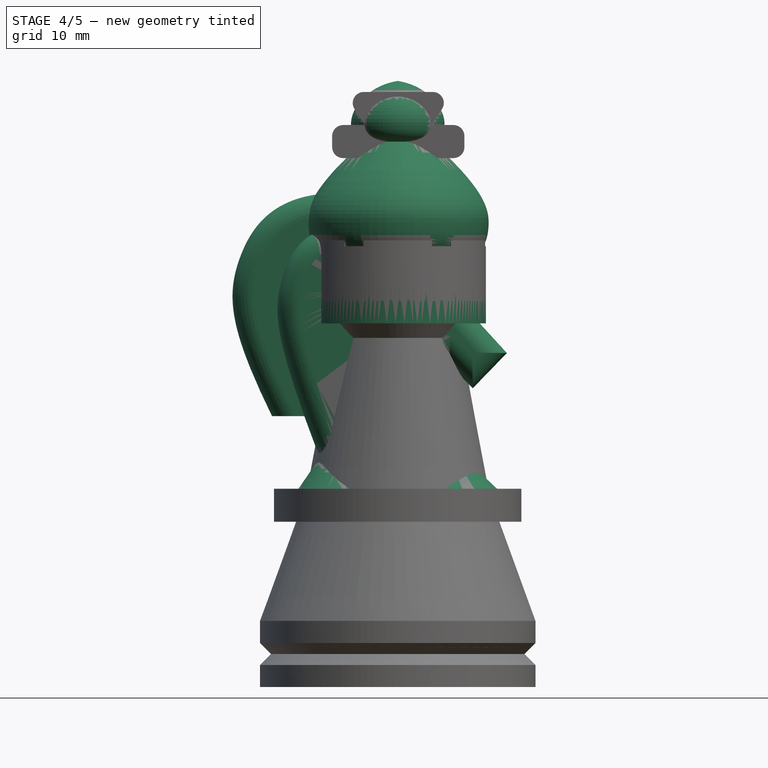
[diagram: stage 4 of 5 — front view after this stage's code; geometry added in this stage tinted green]
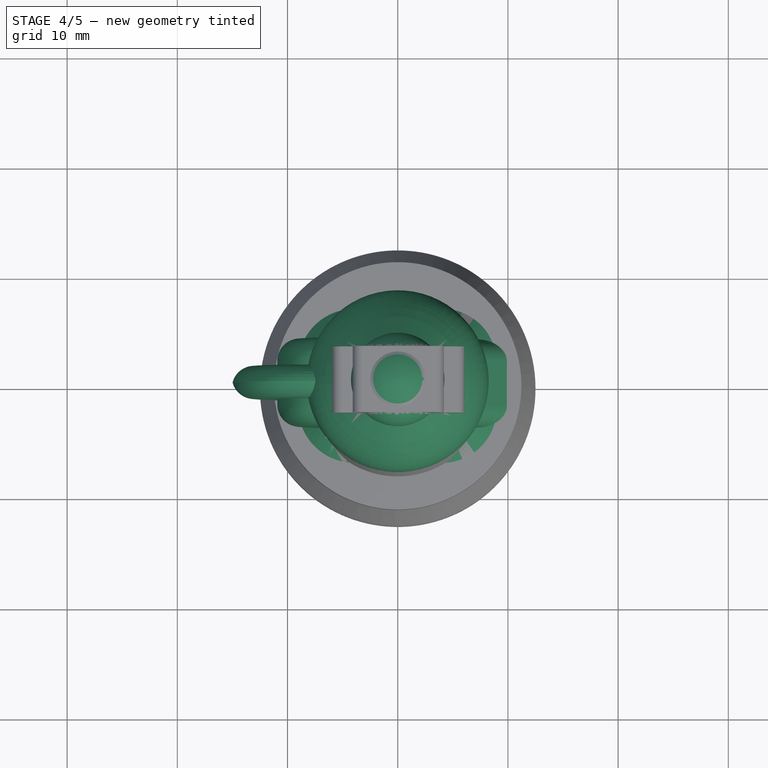
[diagram: stage 4 of 5 — top view after this stage's code; geometry added in this stage tinted green]
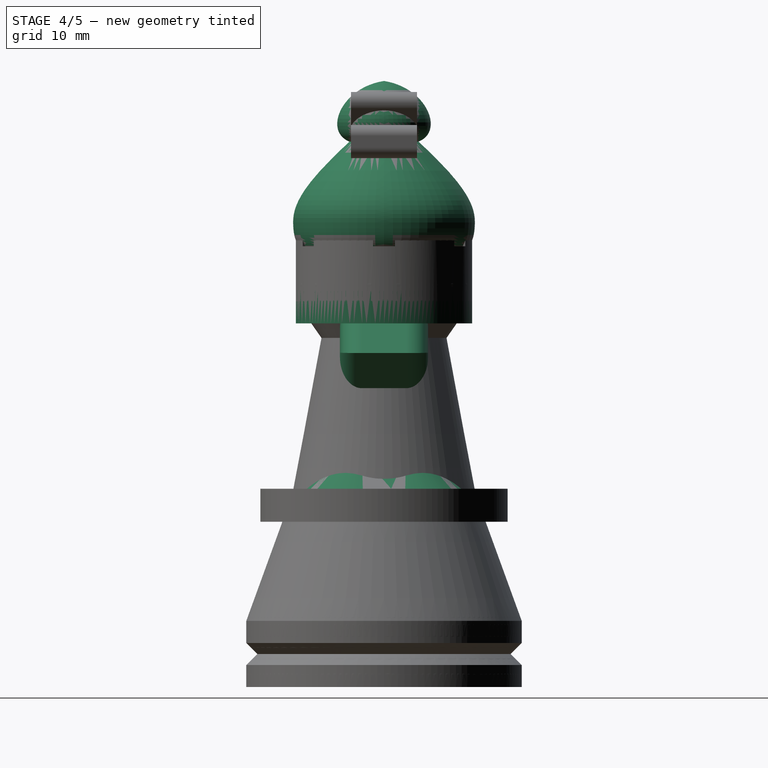
[diagram: stage 4 of 5 — right view after this stage's code; geometry added in this stage tinted green]
FEATURE [Sketcher::SketchObject] Sketch002
  ArcFitTolerance = 1e-06
  AttachmentSupport = -> [XZ_Plane002]
  FullyConstrained = false
  MakeInternals = false
  MapMode = 5
  Placement = pos=(0,0,0) rot=(1,0,0;1.5708rad)
  sketch-geometry (33):
    g0: LineSegment StartX=0 StartY=5 StartZ=0 EndX=5 EndY=5 EndZ=0
    g1: LineSegment StartX=5 StartY=5 StartZ=0 EndX=5 EndY=0 EndZ=0
    g2: LineSegment StartX=5 StartY=0 StartZ=0 EndX=12.5 EndY=0 EndZ=0
    g3: LineSegment StartX=12.5 StartY=0 StartZ=0 EndX=12.5 EndY=2 EndZ=0
    g4: LineSegment StartX=0 StartY=55 StartZ=0 EndX=0 EndY=5 EndZ=0
    g5: LineSegment StartX=12.5 StartY=2 StartZ=0 EndX=11.5 EndY=3 EndZ=0
    g6: LineSegment StartX=11.5 StartY=3 StartZ=0 EndX=12.5 EndY=4 EndZ=0
    g7: LineSegment StartX=12.5 StartY=4 StartZ=0 EndX=12.5 EndY=6 EndZ=0
    g8: LineSegment StartX=12.5 StartY=6 StartZ=0 EndX=9.22427 EndY=15 EndZ=0
    g9: LineSegment StartX=9.22427 StartY=15 StartZ=0 EndX=11.2243 EndY=15 EndZ=0
    g10: LineSegment StartX=11.2243 StartY=15 StartZ=0 EndX=11.2243 EndY=18 EndZ=0
    g11: LineSegment StartX=11.2243 StartY=18 StartZ=0 EndX=8.22427 EndY=18 EndZ=0
    g12: LineSegment StartX=8.22427 StartY=18 StartZ=0 EndX=5 EndY=33 EndZ=0
    g13: LineSegment StartX=5 StartY=33 StartZ=0 EndX=8 EndY=33 EndZ=0
    g14-g18: Circle [constr] x5 (B-spline internal-alignment scaffolding for g19; pole/knot coordinates omitted)
    g19: BSplineCurve PolesCount=5 KnotsCount=3 Degree=3 IsPeriodic=0
    g20: GeomPoint [constr] X=4.75971 Y=37.9162 Z=0
    g21: GeomPoint [constr] X=8.23966 Y=41.8153 Z=0
    g22: GeomPoint [constr] X=3.13449 Y=49.4894 Z=0
    g23-g26: Circle [constr] x4 (B-spline internal-alignment scaffolding for g27; pole/knot coordinates omitted)
    g27: BSplineCurve PolesCount=4 KnotsCount=2 Degree=3 IsPeriodic=0
    g28: GeomPoint [constr] X=3.13449 Y=49.4894 Z=0
    g29: GeomPoint [constr] X=0 Y=55 Z=0
    g30: LineSegment StartX=4.75971 StartY=37.9162 StartZ=0 EndX=4.75971 EndY=36 EndZ=0
    g31: LineSegment StartX=4.75971 StartY=36 StartZ=0 EndX=8 EndY=36 EndZ=0
    g32: LineSegment StartX=8 StartY=36 StartZ=0 EndX=8 EndY=33 EndZ=0
  constraints (65):
    c: PointOnObject(g0,g-2)
    c: Horizontal(g0)
    c: Coincident(g0,g1)
    c: PointOnObject(g1,g-1)
    c: Vertical(g1)
    c: Coincident(g1,g2)
    c: PointOnObject(g2,g-1)
    c: Coincident(g2,g3)
    c: Vertical(g3)
    c: Coincident(g4,g0)
    c: Vertical(g4)
    c: Coincident(g3,g5)
    c: Coincident(g5,g6)
    c: Coincident(g6,g7)
    c: Vertical(g7)
    c: Coincident(g7,g8)
    c: Coincident(g8,g9)
    c: Horizontal(g9)
    c: Coincident(g9,g10)
    c: Vertical(g10)
    c: Distance(g-2,g3) = 12.5
    c: DistanceY(g3,g3) = 2
    c: Angle(g5,g3) = 2.35619
    c: Angle(g5,g6) = 1.5708
    c: Vertical(g6,g3)
    c: DistanceY(g7,g7) = 2
    c: Angle(g8,g7) = 2.79253
    c: DistanceY(g10,g10) = 3
    c: DistanceY(g3,g6) = 2
    c: Coincident(g10,g11)
    c: Horizontal(g11)
    c: Coincident(g11,g12)
    c: Coincident(g12,g13)
    c: Horizontal(g13)
    c: DistanceY(g-1,g13) = 33
    c: Distance(g-1,g9) = 15
    c: DistanceX(g-1,g12) = 5
    c: Distance(g-2,g1) = 5
    c: DistanceY(g1,g1) = 5
    c: Weight(g14) = 1
    c: Equal(g14, g15-g18) x4
    c: InternalAlignment(g14-g18 -> g19) x5
    c: InternalAlignment(g20,g19)
    c: InternalAlignment(g21,g19)
    c: InternalAlignment(g22,g19)
    c: Weight(g23) = 1
    c: Equal(g23,g24)
    c: Equal(g23,g25)
    c: Equal(g23,g26)
    c: InternalAlignment(g23-g26 -> g27) x4
    c: InternalAlignment(g28,g27)
    c: InternalAlignment(g29,g27)
    c: Coincident(g23,g19)
    c: Coincident(g4,g27)
    c: Coincident(g30,g19)
    c: Vertical(g30)
    c: Coincident(g30,g31)
    c: Horizontal(g31)
    c: Coincident(g31,g32)
    c: Coincident(g32,g13)
    c: Vertical(g32)
    c: DistanceY(g32,g32) = 3
    c: DistanceY(g-1,g4) = 55
    c: DistanceX(g9,g9) = 2
    c: DistanceX(g11,g11) = 3
FEATURE [PartDesign::Revolution] Revolution002
  Angle = 360
  Angle2 = 60
  Axis = (0,2e-16,1)
  Base = (0,0,0)
  Placement = pos=(0,0,0) rot=(1,0,0;1.5708rad)
  Profile = -> Sketch002
  ReferenceAxis = -> Sketch002 [V_Axis]
  Refine = true
  Reversed = true
  Suppressed = false
  Type = 0
FEATURE [PartDesign::Body] Body002  label="Bishop"
  AllowCompound = false
  Group = -> [Sketch002,Revolution002,Fillet004,Chamfer001,Fillet012,Sketch007,Pocket001]
  Origin = -> Origin002
  Tip = -> Pocket001
FEATURE [Sketcher::SketchObject] Sketch008
  ArcFitTolerance = 1e-06
  AttachmentSupport = -> [XZ_Plane003]
  FullyConstrained = false
  MakeInternals = false
  MapMode = 5
  Placement = pos=(0,0,0) rot=(1,0,0;1.5708rad)
  sketch-geometry (22):
    g0: LineSegment StartX=-6 StartY=18 StartZ=0 EndX=6 EndY=18 EndZ=0
    g1: LineSegment StartX=6 StartY=18 StartZ=0 EndX=6 EndY=20.7478 EndZ=0
    g2: LineSegment StartX=6 StartY=20.7478 StartZ=0 EndX=-1.56157 EndY=31.5456 EndZ=0
    g3: LineSegment StartX=6.81288 StartY=27.1205 StartZ=0 EndX=9.90572 EndY=30.3085 EndZ=0
    g4: LineSegment StartX=9.90572 StartY=30.3085 StartZ=0 EndX=0 EndY=41.1572 EndZ=0
    g5: Circle [constr] CenterX=0 CenterY=47.0341 CenterZ=0 NormalX=0 NormalY=0 NormalZ=1 AngleXU=0 Radius=1
    g6-g10: Circle [constr] x5 (B-spline internal-alignment scaffolding for g11; pole/knot coordinates omitted)
    g11: BSplineCurve PolesCount=5 KnotsCount=3 Degree=3 IsPeriodic=0
    g12: GeomPoint [constr] X=-6 Y=18 Z=0
    g13: GeomPoint [constr] X=-10.5665 Y=36.8597 Z=0
    g14: GeomPoint [constr] X=0 Y=41.1572 Z=0
    g15: Circle [constr] CenterX=-1.56157 CenterY=31.5456 CenterZ=0 NormalX=0 NormalY=0 NormalZ=1 AngleXU=0 Radius=1
    g16: Circle [constr] CenterX=1.81676 CenterY=28.5479 CenterZ=0 NormalX=0 NormalY=0 NormalZ=1 AngleXU=0 Radius=1
    g17: Circle [constr] CenterX=4.48136 CenterY=29.4044 CenterZ=0 NormalX=0 NormalY=0 NormalZ=1 AngleXU=0 Radius=1
    g18: BSplineCurve PolesCount=3 KnotsCount=2 Degree=2 IsPeriodic=0
    g19: GeomPoint [constr] X=-1.56157 Y=31.5456 Z=0
    g20: GeomPoint [constr] X=4.48136 Y=29.4044 Z=0
    g21: LineSegment StartX=4.48136 StartY=29.4044 StartZ=0 EndX=6.81288 EndY=27.1205 EndZ=0
  constraints (29):
    c: PointOnObject(g0,g-3)
    c: PointOnObject(g0,g-3)
    c: Coincident(g0,g1)
    c: Vertical(g1)
    c: Coincident(g1,g2)
    c: Coincident(g3,g4)
    c: PointOnObject(g4,g-2)
    c: Weight(g5) = 1
    c: Weight(g6) = 1
    c: Equal(g6, g7-g10) x4
    c: InternalAlignment(g6-g10 -> g11) x5
    c: InternalAlignment(g12,g11)
    c: InternalAlignment(g13,g11)
    c: InternalAlignment(g14,g11)
    c: Coincident(g6,g0)
    c: Coincident(g10,g4)
    c: Weight(g15) = 1
    c: Equal(g15,g16)
    c: Equal(g15,g17)
    c: InternalAlignment(g15,g18)
    c: InternalAlignment(g16,g18)
    c: InternalAlignment(g17,g18)
    c: InternalAlignment(g19,g18)
    c: InternalAlignment(g20,g18)
    c: Coincident(g15,g2)
    c: Coincident(g21,g18)
    c: Coincident(g21,g3)
    c: Distance(g11,g-2) = 6
    c: Distance(g0,g-2) = 6
FEATURE [PartDesign::Pad] Pad
  BaseFeature = -> Fillet007
  Direction = (0,-1,2e-16)
  Length = 8
  Length2 = 10
  Midplane = true
  Placement = pos=(0,0,0) rot=(1,0,0;1.5708rad)
  Profile = -> Sketch008
  ReferenceAxis = -> Sketch008 [N_Axis]
  Refine = true
  Suppressed = false
  Type = 0
FEATURE [Sketcher::SketchObject] Sketch009
  ArcFitTolerance = 1e-06
  AttachmentSupport = -> [XZ_Plane003]
  ExternalGeometry = -> [Pad]
  FullyConstrained = false
  MakeInternals = false
  MapMode = 5
  Placement = pos=(0,0,0) rot=(1,0,0;1.5708rad)
  sketch-geometry (14):
    g0: LineSegment StartX=0.64772 StartY=44.0864 StartZ=0 EndX=8.9e-15 EndY=41.1572 EndZ=0
    g1: LineSegment StartX=8.9e-15 StartY=41.1572 StartZ=0 EndX=-6.46016 EndY=40.2259 EndZ=0
    g2: LineSegment StartX=-6.46016 StartY=40.2259 StartZ=0 EndX=-9.07542 EndY=36.5645 EndZ=0
    g3: LineSegment StartX=-9.07542 StartY=36.5645 StartZ=0 EndX=-8.4749 EndY=24.582 EndZ=0
    g4: LineSegment StartX=-8.4749 StartY=24.582 StartZ=0 EndX=-11.4749 EndY=24.582 EndZ=0
    g5-g9: Circle [constr] x5 (B-spline internal-alignment scaffolding for g10; pole/knot coordinates omitted)
    g10: BSplineCurve PolesCount=5 KnotsCount=3 Degree=3 IsPeriodic=0
    g11: GeomPoint [constr] X=0.64772 Y=44.0864 Z=0
    g12: GeomPoint [constr] X=-14.3634 Y=39.0244 Z=0
    g13: GeomPoint [constr] X=-11.4749 Y=24.582 Z=0
  constraints (15):
    c: Coincident(g0,g1)
    c: Coincident(g1,g2)
    c: Coincident(g2,g3)
    c: Coincident(g3,g4)
    c: Horizontal(g4)
    c: Distance(g0,g0) = 3
    c: DistanceX(g4,g4) = 3
    c: Weight(g5) = 1
    c: Equal(g5, g6-g9) x4
    c: InternalAlignment(g5-g9 -> g10) x5
    c: InternalAlignment(g11,g10)
    c: InternalAlignment(g12,g10)
    c: InternalAlignment(g13,g10)
    c: Coincident(g5,g0)
    c: Coincident(g9,g4)
FEATURE [PartDesign::Pad] Pad001
  BaseFeature = -> Pad
  Direction = (0,-1,2e-16)
  Length = 3
  Length2 = 10
  Midplane = true
  Placement = pos=(0,0,0) rot=(1,0,0;1.5708rad)
  Profile = -> Sketch009
  ReferenceAxis = -> Sketch009 [N_Axis]
  Refine = true
  Suppressed = false
  Type = 0
FEATURE [PartDesign::Fillet] Fillet013
  Base = -> Pad001 [Edge59,Edge41,Edge40,Edge39,Edge38,Edge37,Edge36,Edge35]
  BaseFeature = -> Pad001
  Placement = pos=(0,0,0) rot=(1,0,0;1.5708rad)
  Radius = 2
  Refine = true
  SupportTransform = false
  Suppressed = false
  UseAllEdges = false
FEATURE [Sketcher::SketchObject] Sketch010
  ArcFitTolerance = 1e-06
  AttachmentSupport = -> [Fillet013]
  FullyConstrained = false
  MakeInternals = false
  MapMode = 5
  Placement = pos=(0,-4,0) rot=(1,0,0;1.5708rad)
  sketch-geometry (2):
    g0: Circle CenterX=-3.65167 CenterY=36.3906 CenterZ=0 NormalX=0 NormalY=0 NormalZ=1 AngleXU=0 Radius=2
    g1: Circle CenterX=-3.65167 CenterY=36.3906 CenterZ=0 NormalX=0 NormalY=0 NormalZ=1 AngleXU=0 Radius=1
  constraints (3):
    c: Coincident(g1,g0)
    c: Diameter(g0) = 4
    c: Diameter(g1) = 2
FEATURE [PartDesign::Pocket] Pocket002
  BaseFeature = -> Fillet013
  Direction = (0,1,-2e-16)
  Length = 1
  Length2 = 5
  Placement = pos=(0,0,0) rot=(1,0,0;1.5708rad)
  Profile = -> Sketch010
  ReferenceAxis = -> Sketch010 [N_Axis]
  Refine = true
  Suppressed = false
  Type = 0
FEATURE [PartDesign::Mirrored] Mirrored
  BaseFeature = -> Pocket002
  MirrorPlane = -> XZ_Plane003
  Originals = -> [Fillet013,Pocket002]
  Placement = pos=(0,0,0) rot=(1,0,0;1.5708rad)
  Refine = true
  Suppressed = false
  TransformMode = 0
FEATURE [PartDesign::Chamfer] Chamfer005
  Angle = 45
  Base = -> Mirrored [Edge33]
  BaseFeature = -> Mirrored
  ChamferType = 0
  FlipDirection = false
  Placement = pos=(0,0,0) rot=(1,0,0;1.5708rad)
  Refine = true
  Size = 3
  Size2 = 1
  SupportTransform = false
  Suppressed = false
  UseAllEdges = false
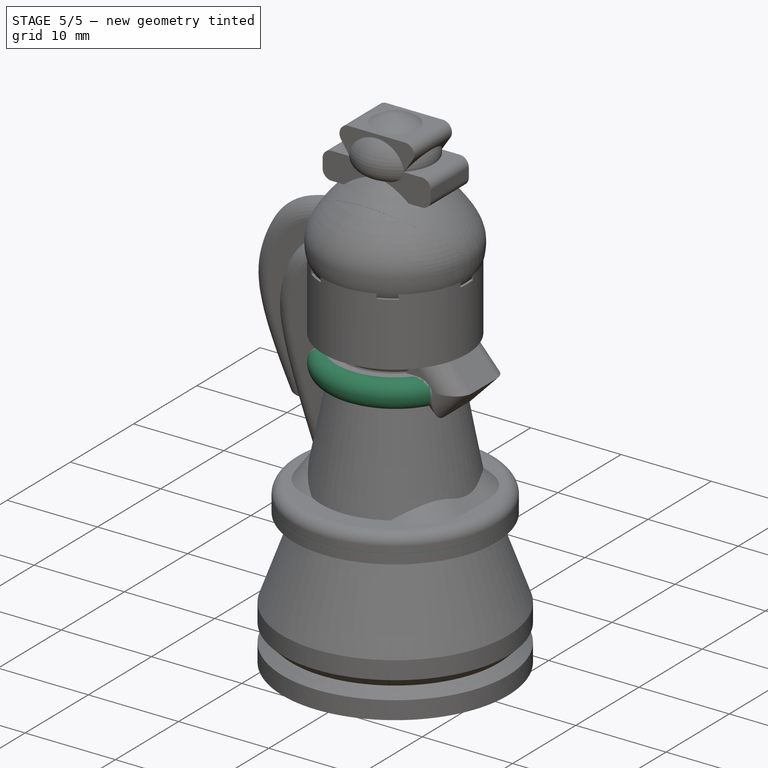
[diagram: stage 5 of 5 — iso view after this stage's code; geometry added in this stage tinted green]
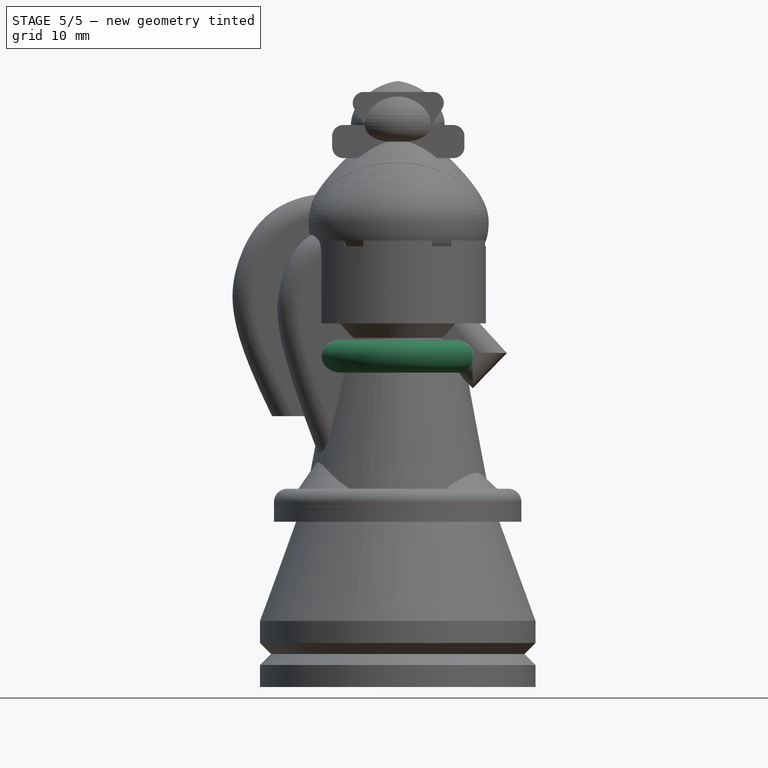
[diagram: stage 5 of 5 — front view after this stage's code; geometry added in this stage tinted green]
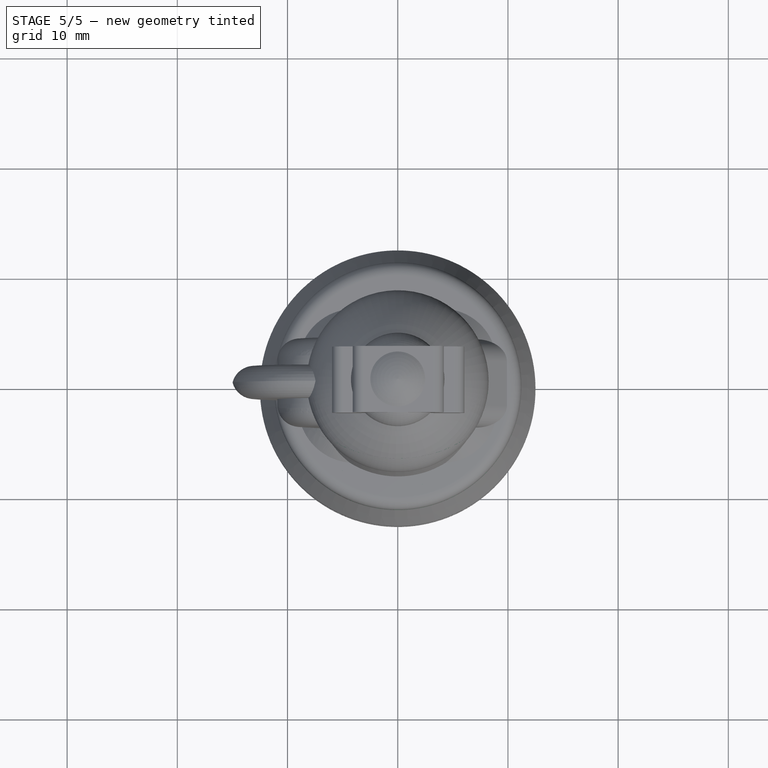
[diagram: stage 5 of 5 — top view after this stage's code; geometry added in this stage tinted green]
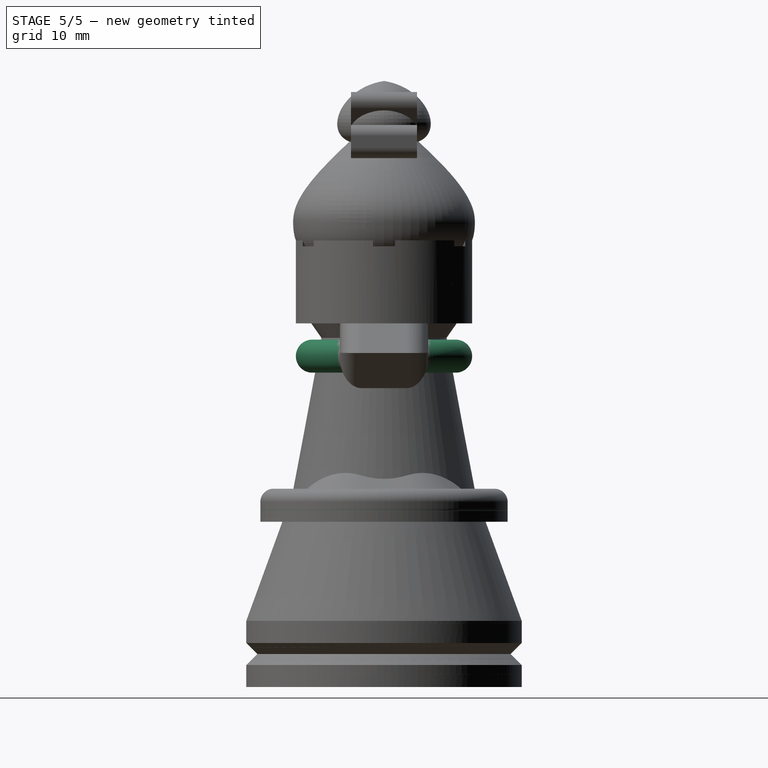
[diagram: stage 5 of 5 — right view after this stage's code; geometry added in this stage tinted green]
FEATURE [Sketcher::SketchObject] Sketch
  ArcFitTolerance = 1e-06
  AttachmentSupport = -> [XZ_Plane]
  FullyConstrained = false
  MakeInternals = false
  MapMode = 5
  Placement = pos=(0,0,0) rot=(1,0,0;1.5708rad)
  sketch-geometry (17):
    g0: LineSegment StartX=1.8e-15 StartY=5 StartZ=0 EndX=5 EndY=5 EndZ=0
    g1: LineSegment StartX=5 StartY=5 StartZ=0 EndX=5 EndY=0 EndZ=0
    g2: LineSegment StartX=5 StartY=0 StartZ=0 EndX=12.5 EndY=0 EndZ=0
    g3: LineSegment StartX=12.5 StartY=0 StartZ=0 EndX=12.5 EndY=2 EndZ=0
    g4: LineSegment StartX=1.8e-15 StartY=42 StartZ=0 EndX=1.8e-15 EndY=5 EndZ=0
    g5: LineSegment StartX=12.5 StartY=2 StartZ=0 EndX=11.5 EndY=3 EndZ=0
    g6: LineSegment StartX=11.5 StartY=3 StartZ=0 EndX=12.5 EndY=4 EndZ=0
    g7: LineSegment StartX=12.5 StartY=4 StartZ=0 EndX=12.5 EndY=6 EndZ=0
    g8: LineSegment StartX=12.5 StartY=6 StartZ=0 EndX=9.22427 EndY=15 EndZ=0
    g9: LineSegment StartX=9.22427 StartY=15 StartZ=0 EndX=11.2243 EndY=15 EndZ=0
    g10: LineSegment StartX=11.2243 StartY=15 StartZ=0 EndX=11.2243 EndY=18 EndZ=0
    g11: LineSegment StartX=11.2243 StartY=18 StartZ=0 EndX=8.22427 EndY=18 EndZ=0
    g12: LineSegment StartX=8.22427 StartY=18 StartZ=0 EndX=3.99876 EndY=28.5268 EndZ=0
    g13: LineSegment StartX=3.99876 StartY=28.5268 StartZ=0 EndX=8 EndY=28.5268 EndZ=0
    g14: LineSegment StartX=8 StartY=28.5268 StartZ=0 EndX=8 EndY=31.5268 EndZ=0
    g15: LineSegment StartX=8 StartY=31.5268 StartZ=0 EndX=3.99876 EndY=31.5268 EndZ=0
    g16: ArcOfCircle CenterX=0 CenterY=36 CenterZ=0 NormalX=0 NormalY=0 NormalZ=1 AngleXU=0 Radius=6 StartAngle=5.44184 EndAngle=7.85398
  constraints (51):
    c: PointOnObject(g0,g-2)
    c: Horizontal(g0)
    c: Coincident(g0,g1)
    c: PointOnObject(g1,g-1)
    c: Vertical(g1)
    c: Coincident(g1,g2)
    c: PointOnObject(g2,g-1)
    c: Coincident(g2,g3)
    c: Vertical(g3)
    c: Coincident(g4,g0)
    c: Vertical(g4)
    c: Coincident(g3,g5)
    c: Coincident(g5,g6)
    c: Coincident(g6,g7)
    c: Vertical(g7)
    c: Coincident(g7,g8)
    c: Coincident(g8,g9)
    c: Horizontal(g9)
    c: Coincident(g9,g10)
    c: Vertical(g10)
    c: Distance(g-2,g3) = 12.5
    c: DistanceY(g3,g3) = 2
    c: Angle(g5,g3) = 2.35619
    c: Angle(g5,g6) = 1.5708
    c: Vertical(g6,g3)
    c: DistanceY(g7,g7) = 2
    c: Angle(g8,g7) = 2.79253
    c: DistanceY(g10,g10) = 3
    c: DistanceY(g3,g6) = 2
    c: Coincident(g10,g11)
    c: Horizontal(g11)
    c: Coincident(g11,g12)
    c: Coincident(g12,g13)
    c: Coincident(g13,g14)
    c: Coincident(g14,g15)
    c: Horizontal(g15)
    c: Horizontal(g13)
    c: Vertical(g14)
    c: PointOnObject(g16,g-2)
    c: Coincident(g16,g15)
    c: Coincident(g4,g16)
    c: DistanceY(g14,g14) = 3
    c: Radius(g16) = 6
    c: Distance(g4,g14) = 8
    c: Distance(g-1,g9) = 15
    c: Distance(g-2,g1) = 5
    c: Distance(g1,g1) = 5
    c: Distance(g9,g9) = 2
    c: DistanceX(g11,g11) = 3
    c: DistanceY(g-1,g16) = 36
    c: Vertical(g15,g12)
FEATURE [PartDesign::Revolution] Revolution
  Angle = 360
  Angle2 = 60
  Axis = (0,2e-16,1)
  Base = (0,0,0)
  Placement = pos=(0,0,0) rot=(1,0,0;1.5708rad)
  Profile = -> Sketch
  ReferenceAxis = -> Sketch [V_Axis]
  Refine = true
  Reversed = true
  Suppressed = false
  Type = 0
FEATURE [PartDesign::Fillet] Fillet
  Base = -> Revolution [Edge22,Edge21,Edge16,Edge15]
  BaseFeature = -> Revolution
  Placement = pos=(0,0,0) rot=(1,0,0;1.5708rad)
  Radius = 1.49
  Refine = true
  SupportTransform = false
  Suppressed = false
  UseAllEdges = false
FEATURE [PartDesign::Fillet] Fillet001
  Base = -> Fillet [Edge5,Edge9,Edge16]
  BaseFeature = -> Fillet
  Placement = pos=(0,0,0) rot=(1,0,0;1.5708rad)
  Radius = 2
  Refine = true
  SupportTransform = false
  Suppressed = false
  UseAllEdges = false
FEATURE [PartDesign::Fillet] Fillet004
  Base = -> Revolution002 [Edge16,Edge15]
  BaseFeature = -> Revolution002
  Placement = pos=(0,0,0) rot=(1,0,0;1.5708rad)
  Radius = 1.2
  Refine = true
  SupportTransform = false
  Suppressed = false
  UseAllEdges = false
FEATURE [PartDesign::Chamfer] Chamfer001
  Angle = 45
  Base = -> Fillet004 [Edge15]
  BaseFeature = -> Fillet004
  ChamferType = 0
  FlipDirection = false
  Placement = pos=(0,0,0) rot=(1,0,0;1.5708rad)
  Refine = true
  Size = 2
  Size2 = 1
  SupportTransform = false
  Suppressed = false
  UseAllEdges = false
FEATURE [PartDesign::Fillet] Fillet012
  Base = -> Fillet004 [Edge24,Edge23,Edge15,Edge12]
  BaseFeature = -> Fillet004
  Placement = pos=(0,0,0) rot=(1,0,0;1.5708rad)
  Radius = 1.49
  Refine = true
  SupportTransform = false
  Suppressed = false
  UseAllEdges = false
FEATURE [Sketcher::SketchObject] Sketch007
  ArcFitTolerance = 1e-06
  AttachmentSupport = -> [YZ_Plane002]
  FullyConstrained = false
  MakeInternals = false
  MapMode = 5
  Placement = pos=(0,0,0) rot=(0.57735,0.57735,0.57735;2.0944rad)
  sketch-geometry (4):
    g0: ArcOfCircle CenterX=-15.1086 CenterY=55.4806 CenterZ=0 NormalX=0 NormalY=0 NormalZ=1 AngleXU=0 Radius=1.5 StartAngle=0.785398 EndAngle=3.92699
    g1: ArcOfCircle CenterX=-2.48679 CenterY=42.8588 CenterZ=0 NormalX=0 NormalY=0 NormalZ=1 AngleXU=0 Radius=1.5 StartAngle=3.92699 EndAngle=7.06858
    g2: LineSegment StartX=-14.0479 StartY=56.5413 StartZ=0 EndX=-1.42613 EndY=43.9195 EndZ=0
    g3: LineSegment StartX=-16.1693 StartY=54.42 StartZ=0 EndX=-3.54745 EndY=41.7982 EndZ=0
  constraints (7):
    c: Tangent(g0,g2) = 1.5708
    c: Tangent(g0,g3) = -1.5708
    c: Tangent(g1,g2) = 1.5708
    c: Tangent(g1,g3) = -1.5708
    c: Equal(g0,g1)
    c: Angle(g-2,g2) = 0.785398
    c: Radius(g1) = 1.5
FEATURE [PartDesign::Pocket] Pocket001
  BaseFeature = -> Fillet012
  Direction = (-1,0,0)
  Length = 5
  Length2 = 5
  Midplane = true
  Placement = pos=(0,0,0) rot=(1,0,0;1.5708rad)
  Profile = -> Sketch007
  ReferenceAxis = -> Sketch007 [N_Axis]
  Refine = true
  Suppressed = false
  Type = 1
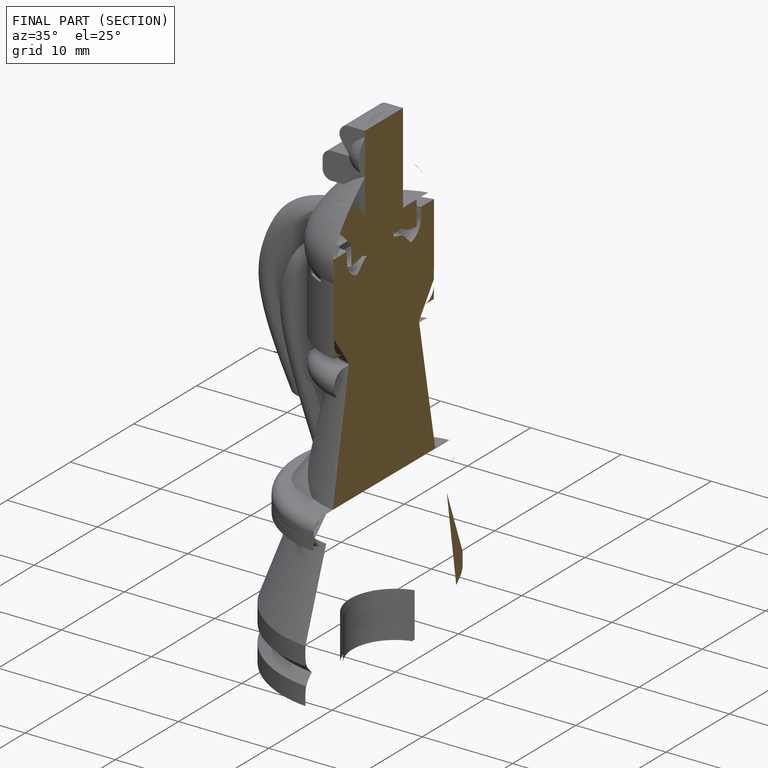
[diagram: finished part — half-section view (interior)]
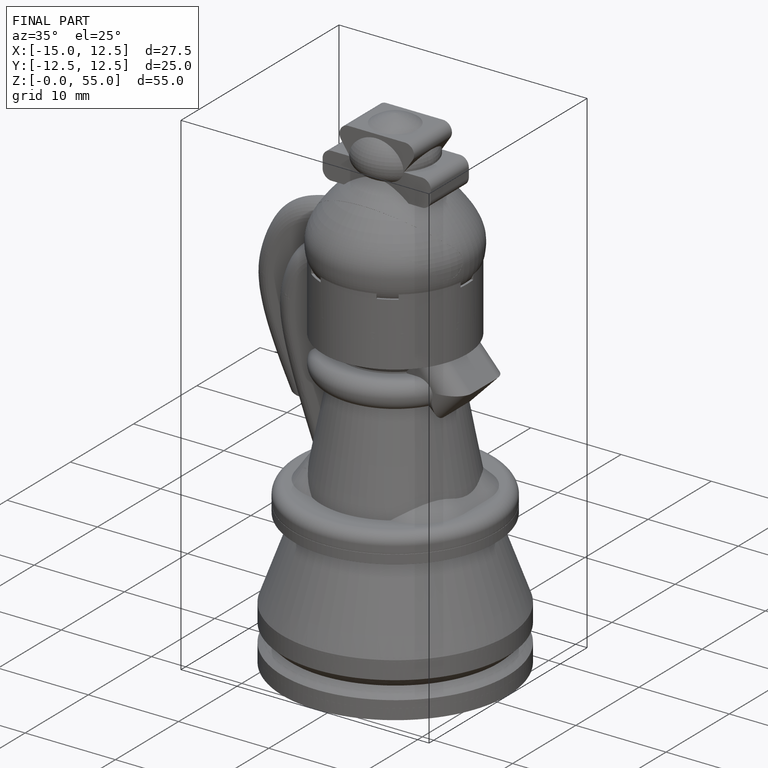
[diagram: finished part — iso view with bounding-box wireframe]
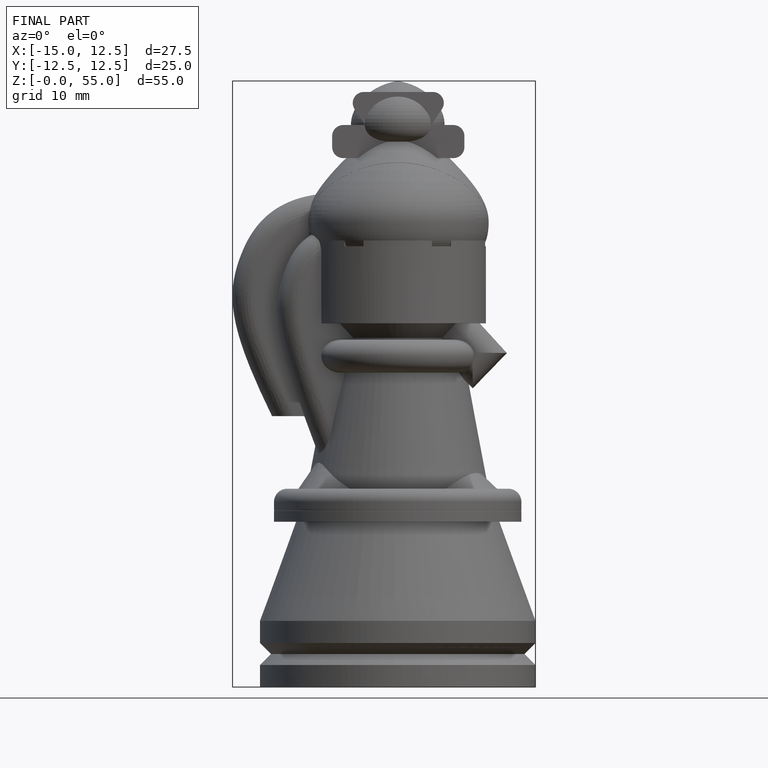
[diagram: finished part — front view with bounding-box wireframe]
